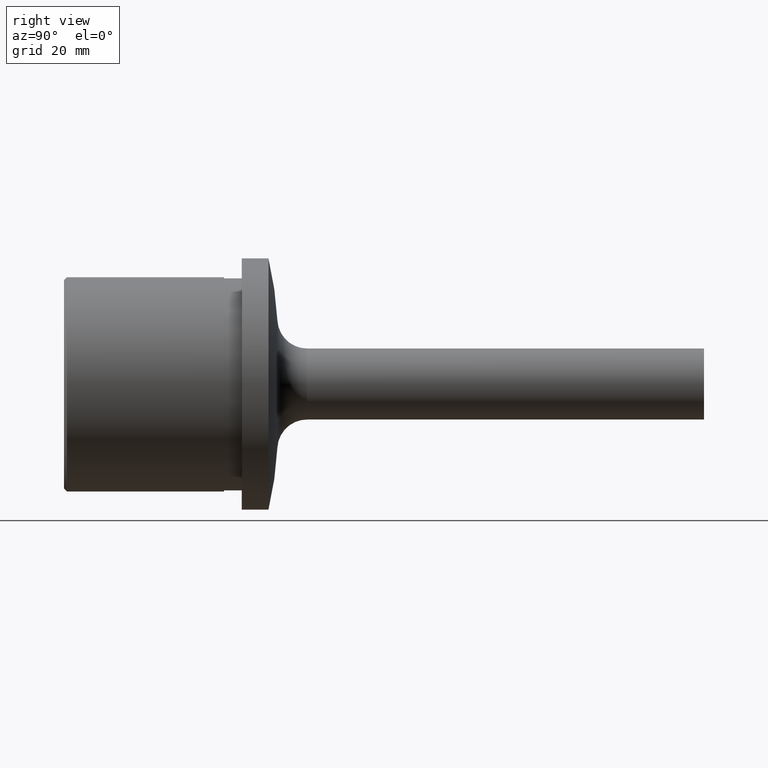
[diagram: clean part render]
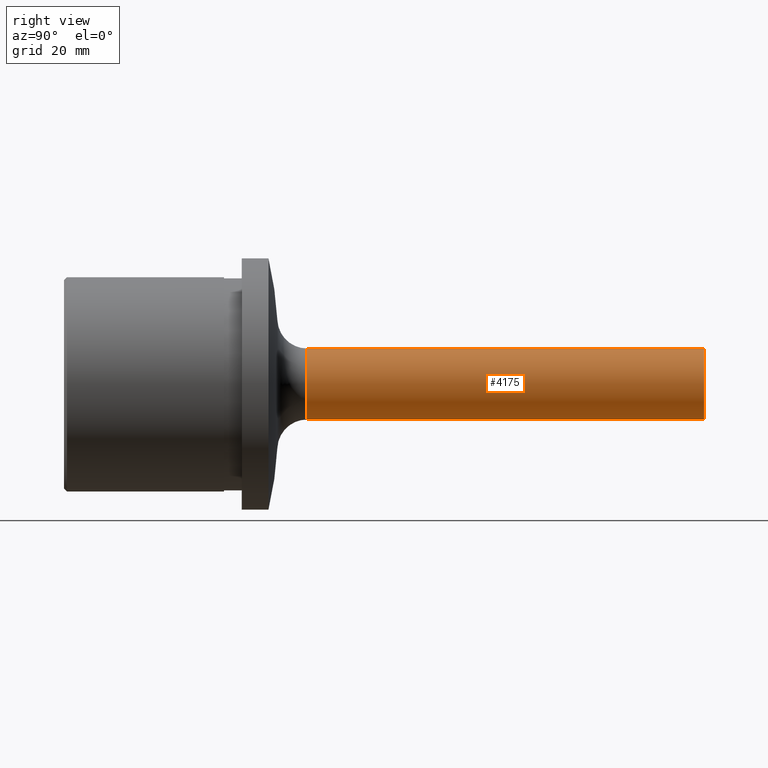
[diagram: same view with one face highlighted and labeled with its STEP entity id]
A machine part, right view. The second image highlights one B-rep face of the part: STEP entity #4175.
In plain terms, the highlighted cylindrical surface (bore or boss wall) has radius 6 mm, axis along (-0, -1, -0).
Its self-contained STEP definition (entity closure, byte-faithful):
#88 = CIRCLE ( 'NONE', #21560, 6.000000000000004441 ) ;
#255 = CARTESIAN_POINT ( 'NONE',  ( 0.000000000000000000, 32.00000000000000000, 0.000000000000000000 ) ) ;
#707 = DIRECTION ( 'NONE',  ( 0.000000000000000000, 0.000000000000000000, -1.000000000000000000 ) ) ;
#1515 = FACE_OUTER_BOUND ( 'NONE', #4502, .T. ) ;
#2440 = DIRECTION ( 'NONE',  ( -0.000000000000000000, -1.000000000000000000, -0.000000000000000000 ) ) ;
#2627 = EDGE_LOOP ( 'NONE', ( #5509 ) ) ;
#3824 = CARTESIAN_POINT ( 'NONE',  ( 0.000000000000000000, 108.0000000000000000, -6.000000000000000000 ) ) ;
#4175 = ADVANCED_FACE ( 'NONE', ( #10700, #1515 ), #9079, .T. ) ;
#4502 = EDGE_LOOP ( 'NONE', ( #9604 ) ) ;
#5509 = ORIENTED_EDGE ( 'NONE', *, *, #21432, .T. ) ;
#5671 = AXIS2_PLACEMENT_3D ( 'NONE', #255, #17452, #10659 ) ;
#7387 = VERTEX_POINT ( 'NONE', #3824 ) ;
#9079 = CYLINDRICAL_SURFACE ( 'NONE', #5671, 6.000000000000001776 ) ;
#9604 = ORIENTED_EDGE ( 'NONE', *, *, #22215, .F. ) ;
#10659 = DIRECTION ( 'NONE',  ( 0.000000000000000000, 0.000000000000000000, -1.000000000000000000 ) ) ;
#10700 = FACE_OUTER_BOUND ( 'NONE', #2627, .T. ) ;
#12246 = CIRCLE ( 'NONE', #18462, 6.000000000000000000 ) ;
#14170 = CARTESIAN_POINT ( 'NONE',  ( 0.000000000000000000, 41.00000000000000000, -6.000000000000004441 ) ) ;
#14957 = VERTEX_POINT ( 'NONE', #14170 ) ;
#16263 = DIRECTION ( 'NONE',  ( 0.000000000000000000, 0.000000000000000000, -1.000000000000000000 ) ) ;
#17452 = DIRECTION ( 'NONE',  ( -0.000000000000000000, -1.000000000000000000, -0.000000000000000000 ) ) ;
#17774 = CARTESIAN_POINT ( 'NONE',  ( 0.000000000000000000, 108.0000000000000000, 0.000000000000000000 ) ) ;
#18462 = AXIS2_PLACEMENT_3D ( 'NONE', #17774, #2440, #16263 ) ;
#19658 = DIRECTION ( 'NONE',  ( -0.000000000000000000, -1.000000000000000000, -0.000000000000000000 ) ) ;
#21339 = CARTESIAN_POINT ( 'NONE',  ( 0.000000000000000000, 41.00000000000000000, 0.000000000000000000 ) ) ;
#21432 = EDGE_CURVE ( 'NONE', #7387, #7387, #12246, .T. ) ;
#21560 = AXIS2_PLACEMENT_3D ( 'NONE', #21339, #19658, #707 ) ;
#22215 = EDGE_CURVE ( 'NONE', #14957, #14957, #88, .T. ) ;